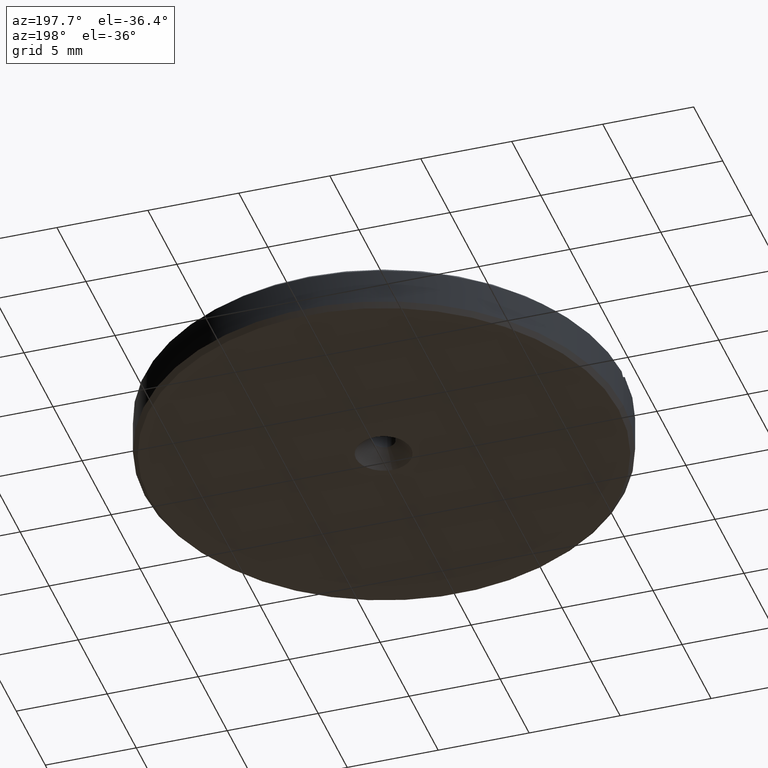
[diagram: clean part render]
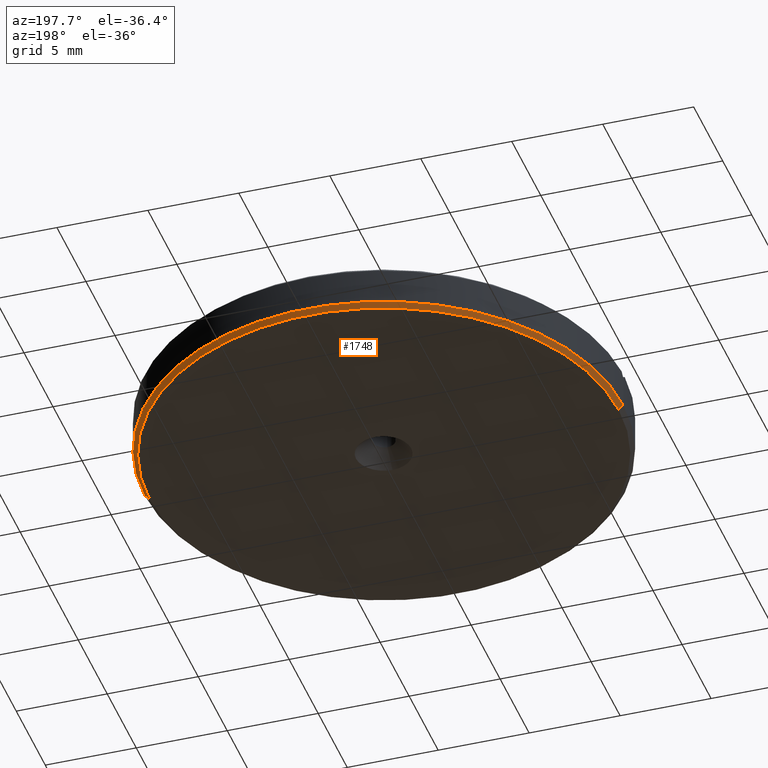
[diagram: same view with one face highlighted and labeled with its STEP entity id]
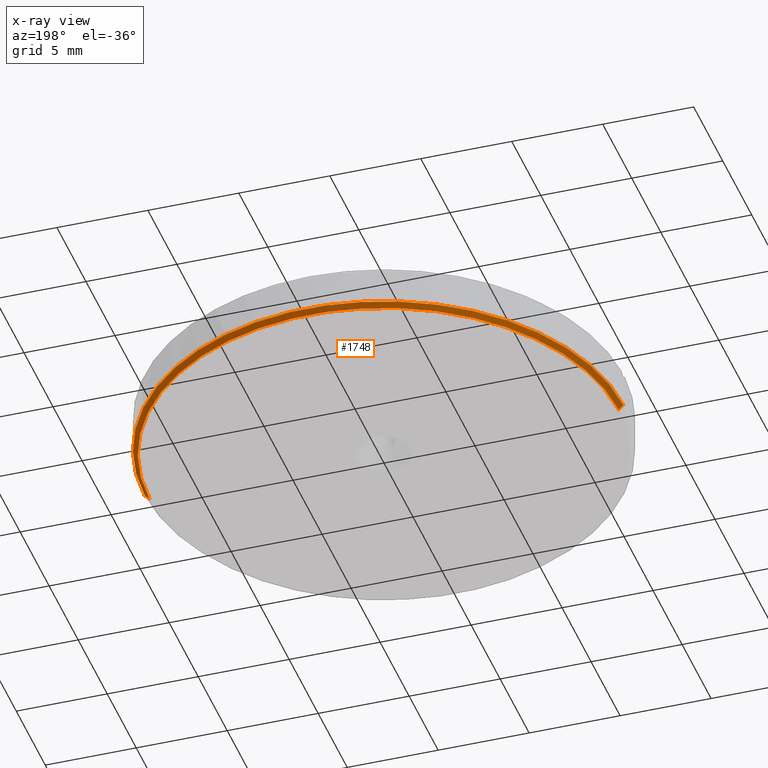
[diagram: x-ray of the same camera — body ghosted, the highlighted face saturated]
A machine part, auxiliary view. The second image highlights one B-rep face of the part: STEP entity #1748.
The next image is the same camera in x-ray: the body ghosted, the highlighted face saturated — about 0% of this face is hidden behind the body in this view.
In plain terms, the highlighted conical surface has half-angle 45 deg.
Its self-contained STEP definition (entity closure, byte-faithful):
#88 = DIRECTION ( 'NONE',  ( 0.000000000000000000, -0.000000000000000000, 1.000000000000000000 ) ) ;
#114 = CARTESIAN_POINT ( 'NONE',  ( 12.90000000000000036, 0.000000000000000000, 0.000000000000000000 ) ) ;
#121 = CARTESIAN_POINT ( 'NONE',  ( 0.000000000000000000, 0.000000000000000000, 0.000000000000000000 ) ) ;
#138 = VERTEX_POINT ( 'NONE', #114 ) ;
#139 = EDGE_LOOP ( 'NONE', ( #416, #557, #213, #1157 ) ) ;
#213 = ORIENTED_EDGE ( 'NONE', *, *, #1669, .F. ) ;
#316 = VERTEX_POINT ( 'NONE', #735 ) ;
#341 = DIRECTION ( 'NONE',  ( -0.7071067811865479058, 8.659560562354937789E-17, 0.7071067811865472397 ) ) ;
#353 = DIRECTION ( 'NONE',  ( 1.000000000000000000, 0.000000000000000000, 2.094200394002419040E-15 ) ) ;
#399 = VERTEX_POINT ( 'NONE', #1396 ) ;
#416 = ORIENTED_EDGE ( 'NONE', *, *, #848, .T. ) ;
#439 = DIRECTION ( 'NONE',  ( 0.7071067811865479058, 0.000000000000000000, 0.7071067811865472397 ) ) ;
#497 = AXIS2_PLACEMENT_3D ( 'NONE', #121, #1368, #1594 ) ;
#557 = ORIENTED_EDGE ( 'NONE', *, *, #867, .T. ) ;
#659 = CARTESIAN_POINT ( 'NONE',  ( -12.90000000000000036, 1.579794370900085738E-15, 0.000000000000000000 ) ) ;
#673 = VECTOR ( 'NONE', #341, 999.9999999999998863 ) ;
#694 = FACE_OUTER_BOUND ( 'NONE', #139, .T. ) ;
#723 = CARTESIAN_POINT ( 'NONE',  ( 12.90000000000000036, 0.000000000000000000, 0.000000000000000000 ) ) ;
#735 = CARTESIAN_POINT ( 'NONE',  ( -12.90000000000000036, 1.595102455889427435E-15, 0.000000000000000000 ) ) ;
#848 = EDGE_CURVE ( 'NONE', #138, #316, #1541, .T. ) ;
#858 = LINE ( 'NONE', #723, #1069 ) ;
#867 = EDGE_CURVE ( 'NONE', #316, #399, #1439, .T. ) ;
#926 = AXIS2_PLACEMENT_3D ( 'NONE', #1589, #88, #1700 ) ;
#1069 = VECTOR ( 'NONE', #439, 999.9999999999998863 ) ;
#1157 = ORIENTED_EDGE ( 'NONE', *, *, #1340, .F. ) ;
#1203 = VERTEX_POINT ( 'NONE', #1371 ) ;
#1271 = CONICAL_SURFACE ( 'NONE', #497, 12.90000000000000036, 0.7853981633974487231 ) ;
#1296 = CIRCLE ( 'NONE', #1600, 13.15000000000000036 ) ;
#1340 = EDGE_CURVE ( 'NONE', #138, #1203, #858, .T. ) ;
#1368 = DIRECTION ( 'NONE',  ( 0.000000000000000000, -0.000000000000000000, 1.000000000000000000 ) ) ;
#1371 = CARTESIAN_POINT ( 'NONE',  ( 13.15000000000000036, 1.610410540878769328E-15, 0.2499999999999724665 ) ) ;
#1396 = CARTESIAN_POINT ( 'NONE',  ( -13.15000000000000036, 0.000000000000000000, 0.2499999999999724665 ) ) ;
#1439 = LINE ( 'NONE', #659, #673 ) ;
#1541 = CIRCLE ( 'NONE', #926, 12.90000000000000036 ) ;
#1556 = CARTESIAN_POINT ( 'NONE',  ( 0.000000000000000000, 0.000000000000000000, 0.2499999999999724665 ) ) ;
#1566 = DIRECTION ( 'NONE',  ( 0.000000000000000000, 0.000000000000000000, 1.000000000000000000 ) ) ;
#1589 = CARTESIAN_POINT ( 'NONE',  ( 0.000000000000000000, 0.000000000000000000, 0.000000000000000000 ) ) ;
#1594 = DIRECTION ( 'NONE',  ( 1.000000000000000000, 0.000000000000000000, 0.000000000000000000 ) ) ;
#1600 = AXIS2_PLACEMENT_3D ( 'NONE', #1556, #1566, #353 ) ;
#1669 = EDGE_CURVE ( 'NONE', #1203, #399, #1296, .T. ) ;
#1700 = DIRECTION ( 'NONE',  ( 1.000000000000000000, 0.000000000000000000, 0.000000000000000000 ) ) ;
#1748 = ADVANCED_FACE ( 'NONE', ( #694 ), #1271, .T. ) ;